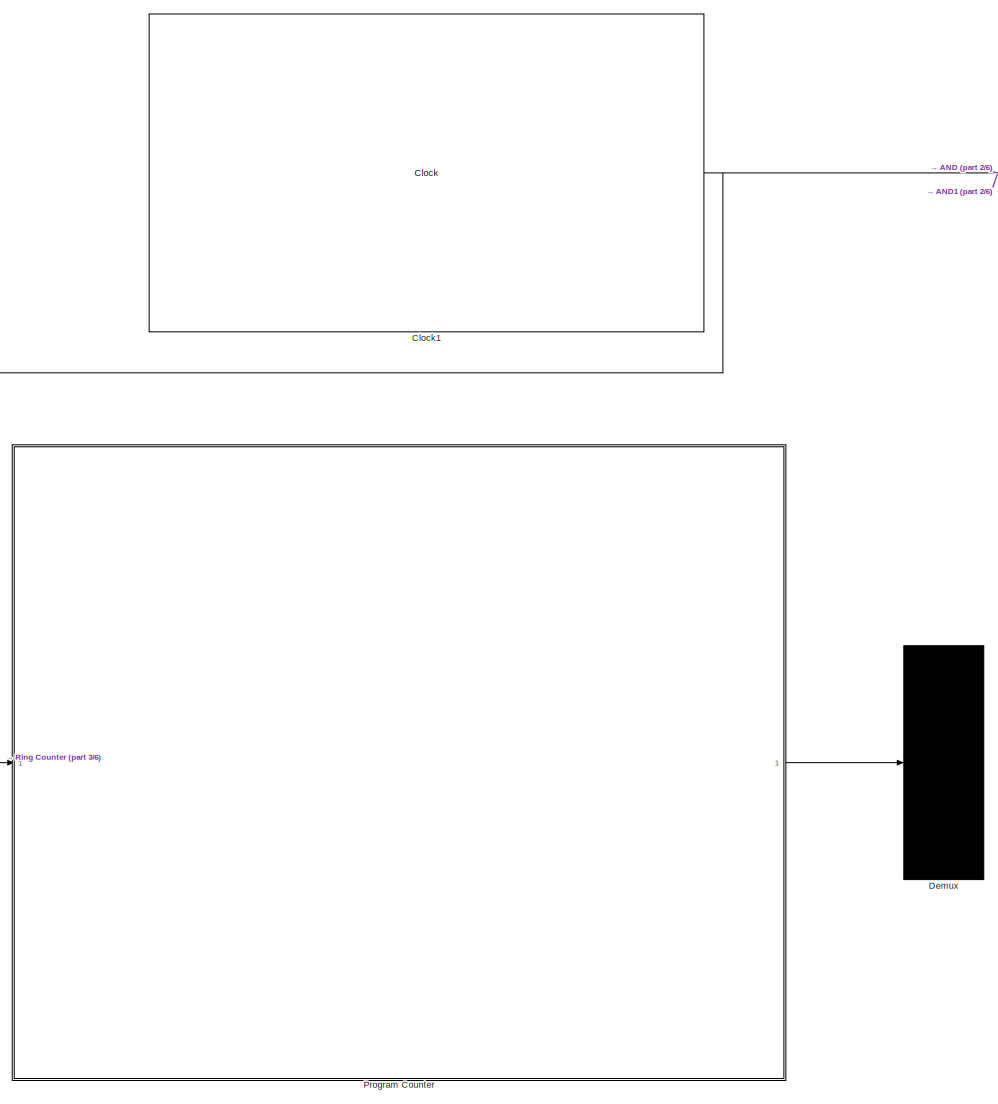
[diagram: root canvas - part 1/6, top left region]
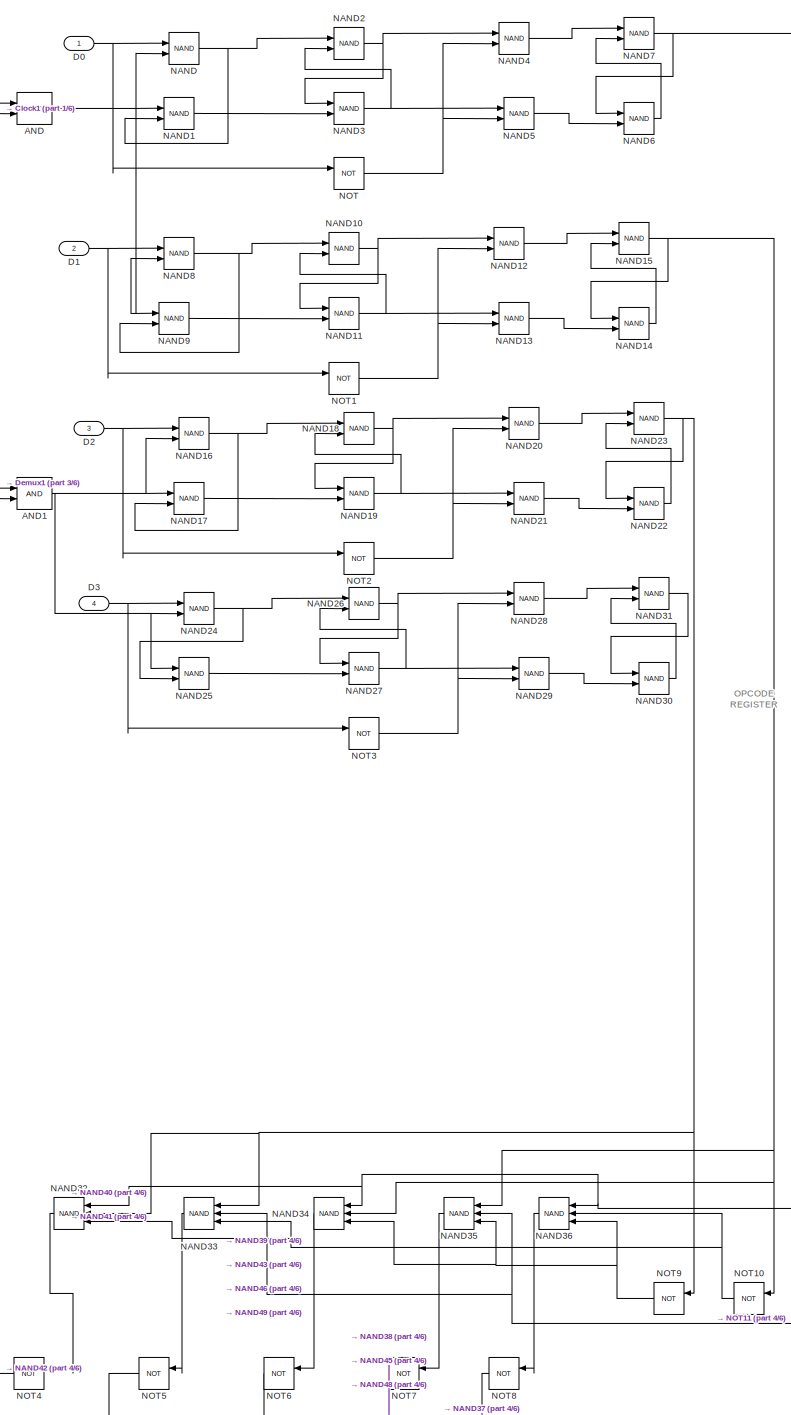
[diagram: root canvas - part 2/6, middle right region]
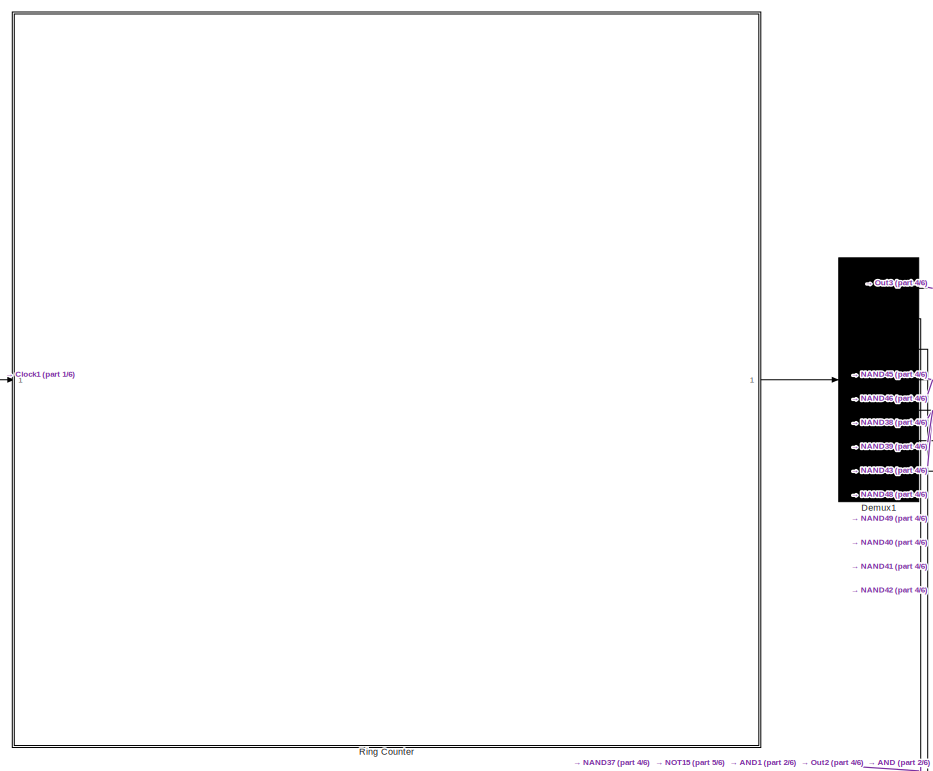
[diagram: root canvas - part 3/6, middle left region]
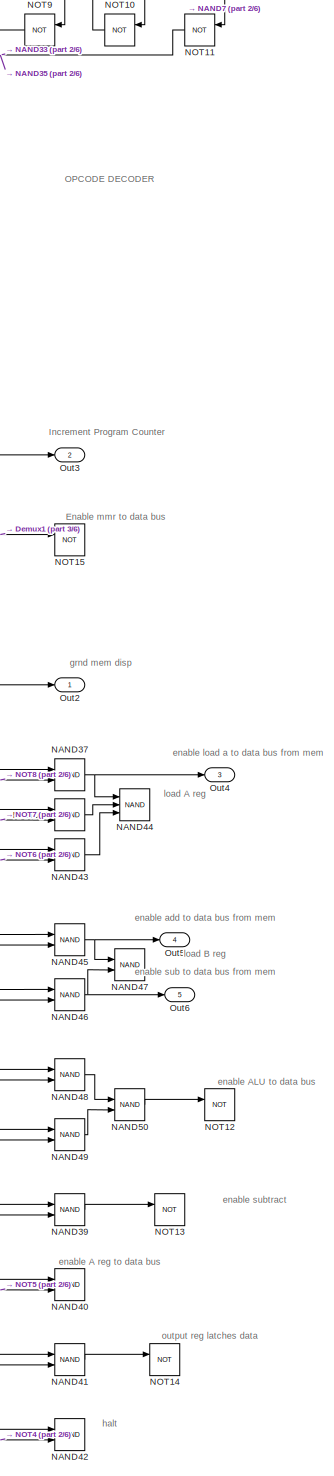
[diagram: root canvas - part 4/6, bottom right region]
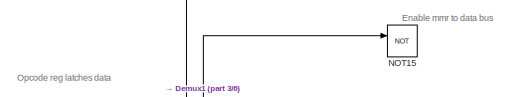
[diagram: root canvas - part 5/6, bottom right region]
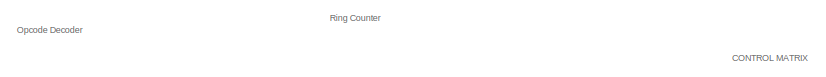
[diagram: root canvas - part 6/6, bottom right region]
MODEL slx_c2628d95ae76
KIND model
CONFIG AbsTol = auto
CONFIG EnableMultiTasking = off
CONFIG FixedStep = auto
CONFIG MaxStep = auto
CONFIG MinStep = auto
CONFIG RelTol = 1e-3
CONFIG SampleTimeConstraint = Unconstrained
CONFIG SolverName = VariableStepAuto
CONFIG StartTime = 0.0
CONFIG StopTime = 10.0
BLOCK [Logic] AND
  AllPortsSameDT = off
  IconShape = distinctive
  OutDataTypeStr = boolean
BLOCK [Logic] AND1
  AllPortsSameDT = off
  IconShape = distinctive
  OutDataTypeStr = boolean
BLOCK [Reference] Clock1  REF=simulink_extras/Flip Flops/Clock
  SourceBlock = simulink_extras/Flip Flops/Clock
  SourceType = Digital clock
BLOCK [Inport] D0
BLOCK [Inport] D1
  Port = 2
BLOCK [Inport] D2
  Port = 3
BLOCK [Inport] D3
  Port = 4
BLOCK [Demux] Demux
  Outputs = 7
BLOCK [Demux] Demux1
  Outputs = 7
BLOCK [Logic] NAND
  AllPortsSameDT = off
  IconShape = distinctive
  Operator = NAND
  OutDataTypeStr = boolean
BLOCK [Logic] NAND1
  AllPortsSameDT = off
  IconShape = distinctive
  Operator = NAND
  OutDataTypeStr = boolean
BLOCK [Logic] NAND10
  AllPortsSameDT = off
  IconShape = distinctive
  Operator = NAND
  OutDataTypeStr = boolean
BLOCK [Logic] NAND11
  AllPortsSameDT = off
  IconShape = distinctive
  Operator = NAND
  OutDataTypeStr = boolean
BLOCK [Logic] NAND12
  AllPortsSameDT = off
  IconShape = distinctive
  Operator = NAND
  OutDataTypeStr = boolean
BLOCK [Logic] NAND13
  AllPortsSameDT = off
  IconShape = distinctive
  Operator = NAND
  OutDataTypeStr = boolean
BLOCK [Logic] NAND14
  AllPortsSameDT = off
  IconShape = distinctive
  Operator = NAND
  OutDataTypeStr = boolean
BLOCK [Logic] NAND15
  AllPortsSameDT = off
  IconShape = distinctive
  Operator = NAND
  OutDataTypeStr = boolean
BLOCK [Logic] NAND16
  AllPortsSameDT = off
  IconShape = distinctive
  Operator = NAND
  OutDataTypeStr = boolean
BLOCK [Logic] NAND17
  AllPortsSameDT = off
  IconShape = distinctive
  Operator = NAND
  OutDataTypeStr = boolean
BLOCK [Logic] NAND18
  AllPortsSameDT = off
  IconShape = distinctive
  Operator = NAND
  OutDataTypeStr = boolean
BLOCK [Logic] NAND19
  AllPortsSameDT = off
  IconShape = distinctive
  Operator = NAND
  OutDataTypeStr = boolean
BLOCK [Logic] NAND2
  AllPortsSameDT = off
  IconShape = distinctive
  Operator = NAND
  OutDataTypeStr = boolean
BLOCK [Logic] NAND20
  AllPortsSameDT = off
  IconShape = distinctive
  Operator = NAND
  OutDataTypeStr = boolean
BLOCK [Logic] NAND21
  AllPortsSameDT = off
  IconShape = distinctive
  Operator = NAND
  OutDataTypeStr = boolean
BLOCK [Logic] NAND22
  AllPortsSameDT = off
  IconShape = distinctive
  Operator = NAND
  OutDataTypeStr = boolean
BLOCK [Logic] NAND23
  AllPortsSameDT = off
  IconShape = distinctive
  Operator = NAND
  OutDataTypeStr = boolean
BLOCK [Logic] NAND24
  AllPortsSameDT = off
  IconShape = distinctive
  Operator = NAND
  OutDataTypeStr = boolean
BLOCK [Logic] NAND25
  AllPortsSameDT = off
  IconShape = distinctive
  Operator = NAND
  OutDataTypeStr = boolean
BLOCK [Logic] NAND26
  AllPortsSameDT = off
  IconShape = distinctive
  Operator = NAND
  OutDataTypeStr = boolean
BLOCK [Logic] NAND27
  AllPortsSameDT = off
  IconShape = distinctive
  Operator = NAND
  OutDataTypeStr = boolean
BLOCK [Logic] NAND28
  AllPortsSameDT = off
  IconShape = distinctive
  Operator = NAND
  OutDataTypeStr = boolean
BLOCK [Logic] NAND29
  AllPortsSameDT = off
  IconShape = distinctive
  Operator = NAND
  OutDataTypeStr = boolean
BLOCK [Logic] NAND3
  AllPortsSameDT = off
  IconShape = distinctive
  Operator = NAND
  OutDataTypeStr = boolean
BLOCK [Logic] NAND30
  AllPortsSameDT = off
  IconShape = distinctive
  Operator = NAND
  OutDataTypeStr = boolean
BLOCK [Logic] NAND31
  AllPortsSameDT = off
  IconShape = distinctive
  Operator = NAND
  OutDataTypeStr = boolean
BLOCK [Logic] NAND32
  AllPortsSameDT = off
  IconShape = distinctive
  Inputs = 3
  NameLocation = top
  Operator = NAND
  OutDataTypeStr = boolean
BLOCK [Logic] NAND33
  AllPortsSameDT = off
  IconShape = distinctive
  Inputs = 3
  NameLocation = top
  Operator = NAND
  OutDataTypeStr = boolean
BLOCK [Logic] NAND34
  AllPortsSameDT = off
  IconShape = distinctive
  Inputs = 3
  NameLocation = top
  Operator = NAND
  OutDataTypeStr = boolean
BLOCK [Logic] NAND35
  AllPortsSameDT = off
  IconShape = distinctive
  Inputs = 3
  NameLocation = top
  Operator = NAND
  OutDataTypeStr = boolean
BLOCK [Logic] NAND36
  AllPortsSameDT = off
  IconShape = distinctive
  Inputs = 3
  NameLocation = top
  Operator = NAND
  OutDataTypeStr = boolean
BLOCK [Logic] NAND37
  AllPortsSameDT = off
  IconShape = distinctive
  Operator = NAND
  OutDataTypeStr = boolean
BLOCK [Logic] NAND38
  AllPortsSameDT = off
  IconShape = distinctive
  Operator = NAND
  OutDataTypeStr = boolean
BLOCK [Logic] NAND39
  AllPortsSameDT = off
  IconShape = distinctive
  Operator = NAND
  OutDataTypeStr = boolean
BLOCK [Logic] NAND4
  AllPortsSameDT = off
  IconShape = distinctive
  Operator = NAND
  OutDataTypeStr = boolean
BLOCK [Logic] NAND40
  AllPortsSameDT = off
  IconShape = distinctive
  Operator = NAND
  OutDataTypeStr = boolean
BLOCK [Logic] NAND41
  AllPortsSameDT = off
  IconShape = distinctive
  Operator = NAND
  OutDataTypeStr = boolean
BLOCK [Logic] NAND42
  AllPortsSameDT = off
  IconShape = distinctive
  Operator = NAND
  OutDataTypeStr = boolean
BLOCK [Logic] NAND43
  AllPortsSameDT = off
  IconShape = distinctive
  Operator = NAND
  OutDataTypeStr = boolean
BLOCK [Logic] NAND44
  AllPortsSameDT = off
  IconShape = distinctive
  Inputs = 3
  Operator = NAND
  OutDataTypeStr = boolean
BLOCK [Logic] NAND45
  AllPortsSameDT = off
  IconShape = distinctive
  Operator = NAND
  OutDataTypeStr = boolean
BLOCK [Logic] NAND46
  AllPortsSameDT = off
  IconShape = distinctive
  Operator = NAND
  OutDataTypeStr = boolean
BLOCK [Logic] NAND47
  AllPortsSameDT = off
  IconShape = distinctive
  Operator = NAND
  OutDataTypeStr = boolean
BLOCK [Logic] NAND48
  AllPortsSameDT = off
  IconShape = distinctive
  Operator = NAND
  OutDataTypeStr = boolean
BLOCK [Logic] NAND49
  AllPortsSameDT = off
  IconShape = distinctive
  Operator = NAND
  OutDataTypeStr = boolean
BLOCK [Logic] NAND5
  AllPortsSameDT = off
  IconShape = distinctive
  Operator = NAND
  OutDataTypeStr = boolean
BLOCK [Logic] NAND50
  AllPortsSameDT = off
  IconShape = distinctive
  Operator = NAND
  OutDataTypeStr = boolean
BLOCK [Logic] NAND6
  AllPortsSameDT = off
  IconShape = distinctive
  Operator = NAND
  OutDataTypeStr = boolean
BLOCK [Logic] NAND7
  AllPortsSameDT = off
  IconShape = distinctive
  Operator = NAND
  OutDataTypeStr = boolean
BLOCK [Logic] NAND8
  AllPortsSameDT = off
  IconShape = distinctive
  Operator = NAND
  OutDataTypeStr = boolean
BLOCK [Logic] NAND9
  AllPortsSameDT = off
  IconShape = distinctive
  Operator = NAND
  OutDataTypeStr = boolean
BLOCK [Logic] NOT
  AllPortsSameDT = off
  IconShape = distinctive
  Operator = NOT
  OutDataTypeStr = boolean
BLOCK [Logic] NOT1
  AllPortsSameDT = off
  IconShape = distinctive
  Operator = NOT
  OutDataTypeStr = boolean
BLOCK [Logic] NOT10
  AllPortsSameDT = off
  IconShape = distinctive
  NameLocation = top
  Operator = NOT
  OutDataTypeStr = boolean
BLOCK [Logic] NOT11
  AllPortsSameDT = off
  IconShape = distinctive
  NameLocation = top
  Operator = NOT
  OutDataTypeStr = boolean
BLOCK [Logic] NOT12
  AllPortsSameDT = off
  IconShape = distinctive
  Operator = NOT
  OutDataTypeStr = boolean
BLOCK [Logic] NOT13
  AllPortsSameDT = off
  IconShape = distinctive
  Operator = NOT
  OutDataTypeStr = boolean
BLOCK [Logic] NOT14
  AllPortsSameDT = off
  IconShape = distinctive
  Operator = NOT
  OutDataTypeStr = boolean
BLOCK [Logic] NOT15
  AllPortsSameDT = off
  IconShape = distinctive
  Operator = NOT
  OutDataTypeStr = boolean
BLOCK [Logic] NOT2
  AllPortsSameDT = off
  IconShape = distinctive
  Operator = NOT
  OutDataTypeStr = boolean
BLOCK [Logic] NOT3
  AllPortsSameDT = off
  IconShape = distinctive
  Operator = NOT
  OutDataTypeStr = boolean
BLOCK [Logic] NOT4
  AllPortsSameDT = off
  IconShape = distinctive
  NameLocation = top
  Operator = NOT
  OutDataTypeStr = boolean
BLOCK [Logic] NOT5
  AllPortsSameDT = off
  IconShape = distinctive
  NameLocation = top
  Operator = NOT
  OutDataTypeStr = boolean
BLOCK [Logic] NOT6
  AllPortsSameDT = off
  IconShape = distinctive
  NameLocation = top
  Operator = NOT
  OutDataTypeStr = boolean
BLOCK [Logic] NOT7
  AllPortsSameDT = off
  IconShape = distinctive
  NameLocation = top
  Operator = NOT
  OutDataTypeStr = boolean
BLOCK [Logic] NOT8
  AllPortsSameDT = off
  IconShape = distinctive
  NameLocation = top
  Operator = NOT
  OutDataTypeStr = boolean
BLOCK [Logic] NOT9
  AllPortsSameDT = off
  IconShape = distinctive
  NameLocation = top
  Operator = NOT
  OutDataTypeStr = boolean
BLOCK [Outport] Out2
BLOCK [Outport] Out3
  Port = 2
BLOCK [Outport] Out4
  Port = 3
BLOCK [Outport] Out5
  Port = 4
BLOCK [Outport] Out6
  Port = 5
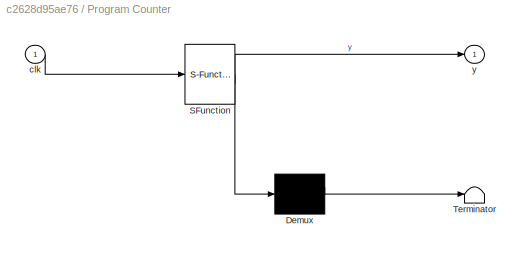
BLOCK [SubSystem] Program Counter
  ErrorFcn = Stateflow.Translate.translate
  PermitHierarchicalResolution = ExplicitOnly
  SFBlockType = MATLAB Function
  TreatAsAtomicUnit = on
BLOCK [Demux] Program Counter/ Demux 
  Outputs = 1
BLOCK [S-Function] Program Counter/ SFunction 
  EnableBusSupport = on
  FunctionName = sf_sfun
  PortCounts = [1 2]
  SFcnIsStateOwnerBlock = off
  SFunctionDeploymentMode = off
  Tag = Stateflow S-Function 2
BLOCK [Terminator] Program Counter/ Terminator 
BLOCK [Inport] Program Counter/clk
BLOCK [Outport] Program Counter/y
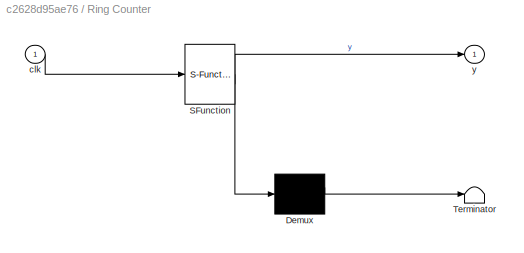
BLOCK [SubSystem] Ring Counter
  ErrorFcn = Stateflow.Translate.translate
  PermitHierarchicalResolution = ExplicitOnly
  SFBlockType = MATLAB Function
  TreatAsAtomicUnit = on
BLOCK [Demux] Ring Counter/ Demux 
  Outputs = 1
BLOCK [S-Function] Ring Counter/ SFunction 
  EnableBusSupport = on
  FunctionName = sf_sfun
  PortCounts = [1 2]
  SFcnIsStateOwnerBlock = off
  SFunctionDeploymentMode = off
  Tag = Stateflow S-Function 1
BLOCK [Terminator] Ring Counter/ Terminator 
BLOCK [Inport] Ring Counter/clk
BLOCK [Outport] Ring Counter/y
ANNOTATION (root): CONTROL MATRIX
ANNOTATION (root): OPCODE DECODER
ANNOTATION (root): OPCODE REGISTER
ANNOTATION (root): Ring Counter
ANNOTATION (root): Opcode Decoder
ANNOTATION (root): Enable mmr to data bus
ANNOTATION (root): Increment Program Counter
ANNOTATION (root): Opcode reg latches data
ANNOTATION (root): enable A reg to data bus
ANNOTATION (root): enable ALU to data bus
ANNOTATION (root): enable add to data bus from mem
ANNOTATION (root): enable load a to data bus from mem
ANNOTATION (root): enable sub to data bus from mem
ANNOTATION (root): enable subtract
ANNOTATION (root): grnd mem disp
ANNOTATION (root): halt
ANNOTATION (root): load A reg
ANNOTATION (root): load B reg
ANNOTATION (root): output reg latches data
NET AND1:1 -> NAND16:2, NAND17:1, NAND24:2, NAND25:1
NET AND:1 -> NAND1:1, NAND8:2, NAND9:1, NAND:2
NET Clock1:1 -> AND1:2, AND:2, Program Counter:1, Ring Counter:1
NET D0:1 -> NAND:1, NOT:1
NET D1:1 -> NAND8:1, NOT1:1
NET D2:1 -> NAND16:1, NOT2:1
NET D3:1 -> NAND24:1, NOT3:1
LINE Demux1:1 -> Out3:1
NET Demux1:2 -> AND1:1, AND:1, NOT15:1, Out2:1
LINE Demux1:3 -> NAND37:1
NET Demux1:4 -> NAND45:1, NAND46:1
NET Demux1:5 -> NAND38:1, NAND39:1, NAND43:1, NAND48:1, NAND49:1
NET Demux1:6 -> NAND40:1, NAND41:1
LINE Demux1:7 -> NAND42:1
NET NAND10:1 -> NAND11:1, NAND12:1
NET NAND11:1 -> NAND10:2, NAND13:1
LINE NAND12:1 -> NAND15:1
LINE NAND13:1 -> NAND14:2
LINE NAND14:1 -> NAND15:2
NET NAND15:1 -> NAND14:1, NAND34:2, NAND35:1, NOT10:1
NET NAND16:1 -> NAND17:2, NAND18:1
LINE NAND17:1 -> NAND19:2
NET NAND18:1 -> NAND19:1, NAND20:1
NET NAND19:1 -> NAND18:2, NAND21:1
LINE NAND1:1 -> NAND3:2
LINE NAND20:1 -> NAND23:1
LINE NAND21:1 -> NAND22:2
LINE NAND22:1 -> NAND23:2
NET NAND23:1 -> NAND22:1, NAND32:2, NAND33:1, NOT9:1
NET NAND24:1 -> NAND25:2, NAND26:1
LINE NAND25:1 -> NAND27:2
NET NAND26:1 -> NAND27:1, NAND28:1
NET NAND27:1 -> NAND26:2, NAND29:1
LINE NAND28:1 -> NAND31:1
LINE NAND29:1 -> NAND30:2
NET NAND2:1 -> NAND3:1, NAND4:1
LINE NAND30:1 -> NAND31:2
LINE NAND31:1 -> NAND30:1
LINE NAND32:1 -> NOT4:1
LINE NAND33:1 -> NOT5:1
LINE NAND34:1 -> NOT6:1
LINE NAND35:1 -> NOT7:1
LINE NAND36:1 -> NOT8:1
NET NAND37:1 -> NAND44:1, Out4:1
LINE NAND38:1 -> NAND44:2
LINE NAND39:1 -> NOT13:1
NET NAND3:1 -> NAND2:2, NAND5:1
LINE NAND41:1 -> NOT14:1
LINE NAND43:1 -> NAND44:3
NET NAND45:1 -> NAND47:1, Out5:1
NET NAND46:1 -> NAND47:2, Out6:1
LINE NAND48:1 -> NAND50:1
LINE NAND49:1 -> NAND50:2
LINE NAND4:1 -> NAND7:1
LINE NAND50:1 -> NOT12:1
LINE NAND5:1 -> NAND6:2
LINE NAND6:1 -> NAND7:2
NET NAND7:1 -> NAND32:1, NAND34:1, NAND36:1, NAND6:1, NOT11:1
NET NAND8:1 -> NAND10:1, NAND9:2
LINE NAND9:1 -> NAND11:2
NET NAND:1 -> NAND1:2, NAND2:1
NET NOT10:1 -> NAND32:3, NAND33:3, NAND36:2
NET NOT11:1 -> NAND33:2, NAND35:2
NET NOT1:1 -> NAND12:2, NAND13:2
NET NOT2:1 -> NAND20:2, NAND21:2
NET NOT3:1 -> NAND28:2, NAND29:2
LINE NOT4:1 -> NAND42:2
NET NOT5:1 -> NAND40:2, NAND41:2
NET NOT6:1 -> NAND39:2, NAND43:2, NAND46:2, NAND49:2
NET NOT7:1 -> NAND38:2, NAND45:2, NAND48:2
LINE NOT8:1 -> NAND37:2
NET NOT9:1 -> NAND34:3, NAND35:3, NAND36:3
NET NOT:1 -> NAND4:2, NAND5:2
LINE Program Counter:1 -> Demux:1
LINE Ring Counter:1 -> Demux1:1
note: NET lines group one-source signal fan-out (src -> all destinations, sorted); 1:1 wires keep LINE
CHART Program Counter states=1 transitions=1
  STATE_LABEL 'eML_blk_kernel()'
  STATE_LABEL 'SCRIPT:\nfunction y = ring_counter(clk)\n% 7-bit Ring Counter\npersistent state\nif isempty(state)\n    state = [1 0 0 0 0 0 0]; % Initial state\nend\n\nif clk == 1\n    state = circshift(state, [0 1]); % Shift right\nend\n\ny = state;\n'
CHART Ring Counter states=1 transitions=1
  STATE_LABEL 'eML_blk_kernel()'
  STATE_LABEL 'SCRIPT:\nfunction y = ring_counter(clk)\n% 7-bit Ring Counter\npersistent state\nif isempty(state)\n    state = [1 0 0 0 0 0 0]; % Initial state\nend\n\nif clk == 1\n    state = circshift(state, [0 1]); % Shift right\nend\n\ny = state;\n'
CHART  states=0 transitions=0
CHART  states=0 transitions=0
